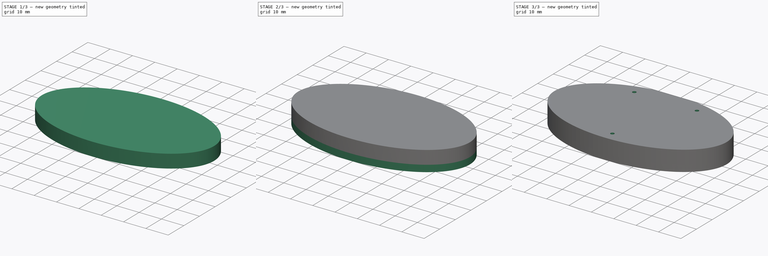
[diagram: build sequence overview — one tinted view per stage of 3, left to right]
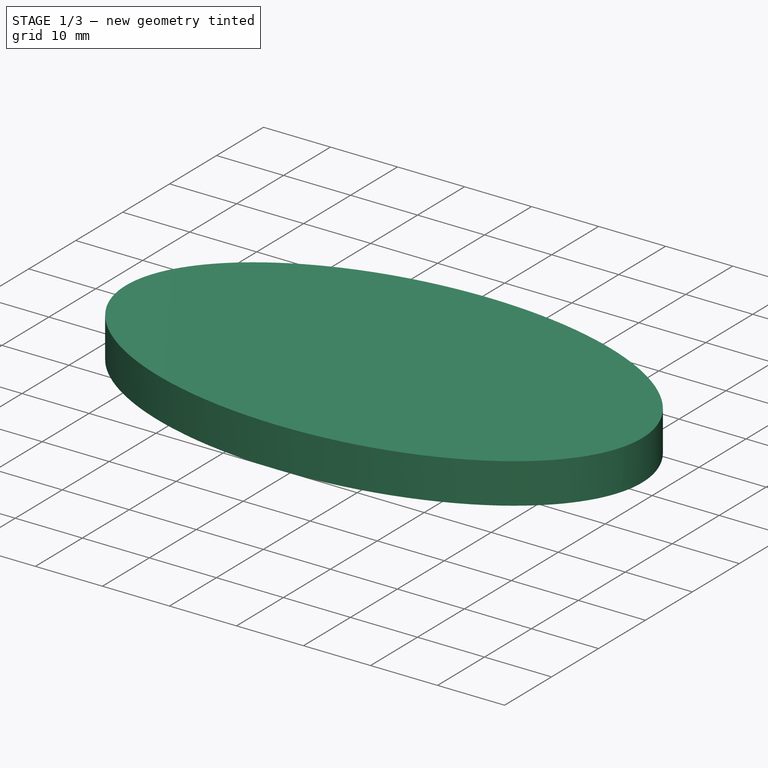
[diagram: stage 1 of 3 — iso view after this stage's code; geometry added in this stage tinted green]
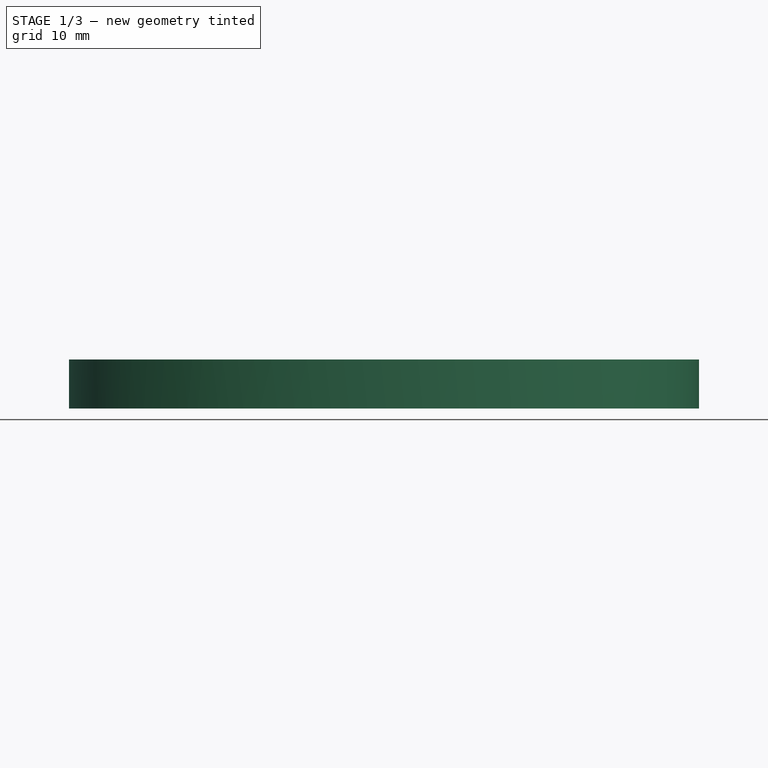
[diagram: stage 1 of 3 — front view after this stage's code; geometry added in this stage tinted green]
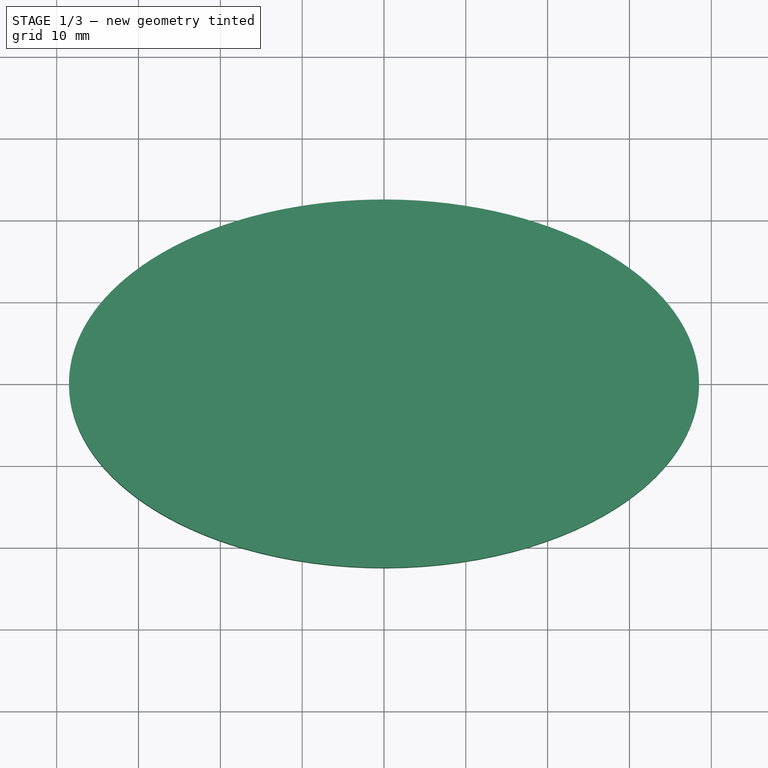
[diagram: stage 1 of 3 — top view after this stage's code; geometry added in this stage tinted green]
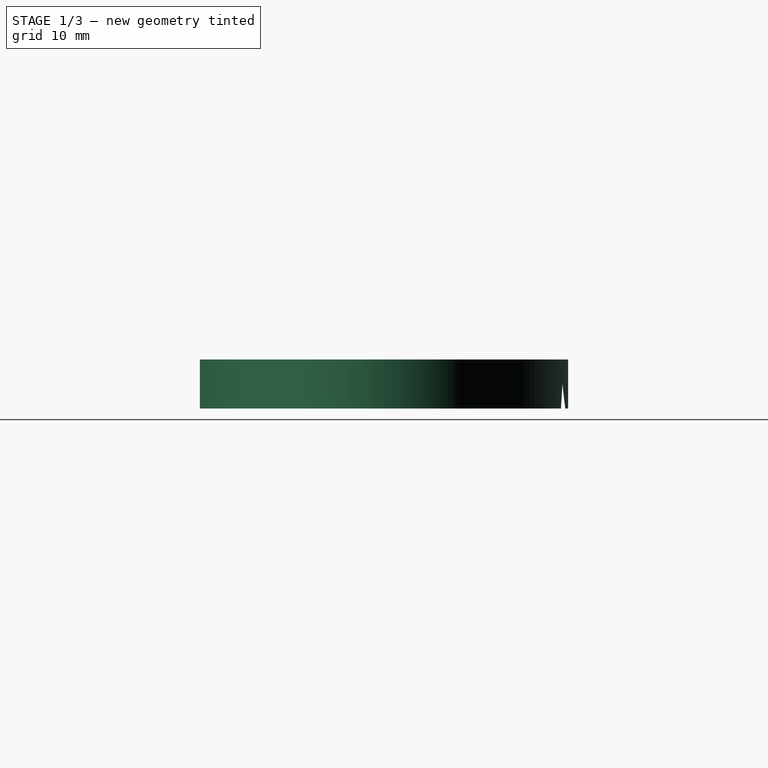
[diagram: stage 1 of 3 — right view after this stage's code; geometry added in this stage tinted green]
FCSTD DOCUMENT  (FreeCAD 0.17R13541 (Git))
Label: Medium-Dense-4-Pixil-Night-Light-ResiZing-66mm-Slot-77mm-Wide-M2-Screws-Bottom-Hexa-Vents
License: All rights reserved
LicenseURL: http://en.wikipedia.org/wiki/All_rights_reserved
objects: Sketcher::SketchObject×7, PartDesign::Pocket×4, PartDesign::Pad×2, PartDesign::Body×1, App::Part×1
note: 20 computed .brp shape members not serialized (recipe doc carries the construction recipe); baked Part::Feature solids carry a one-line shape summary decoded from their .brp

FEATURE [Sketcher::SketchObject] Sketch
  MapMode = 5
  Support = -> [XY_Plane001]
  sketch-geometry (6):
    g0: Ellipse CenterX=0 CenterY=0 CenterZ=0 NormalX=0 NormalY=0 NormalZ=1 MajorRadius=38.5 MinorRadius=22.5 AngleXU=0
    g1: LineSegment [constr] StartX=38.5 StartY=0 StartZ=0 EndX=-38.5 EndY=0 EndZ=0
    g2: LineSegment [constr] StartX=0 StartY=22.5 StartZ=0 EndX=0 EndY=-22.5 EndZ=0
    g3: GeomPoint X=31.241 Y=0 Z=0
    g4: GeomPoint X=-31.241 Y=0 Z=0
    g5: LineSegment StartX=-6.25 StartY=-22.2015 StartZ=0 EndX=6.25 EndY=-22.2015 EndZ=0
  constraints (9):
    c: InternalAlignment(g1-g4 -> g0) x4
    c: Coincident(g0,g-1)
    c: PointOnObject(g2,g-2)
    c: Distance(g2,g2) = 45
    c: Distance(g1,g1) = 77
    c: PointOnObject(g5,g0)
    c: PointOnObject(g5,g0)
    c: Horizontal(g5)
    c: Distance(g5,g5) = 12.5
FEATURE [PartDesign::Pad] Pad
  Length = 6
  Length2 = 100
  Profile = -> Sketch
  Type = 0
FEATURE [Sketcher::SketchObject] Sketch001
  ExternalGeometry = -> [Pad]
  MapMode = 5
  Placement = pos=(0,0,0) rot=(1,0,0;3.14159rad)
  Support = -> [Pad]
  sketch-geometry (9):
    g0: LineSegment StartX=9.55 StartY=-3.6968 StartZ=0 EndX=9.55 EndY=-21.7968 EndZ=0
    g1: LineSegment StartX=9.55 StartY=-21.7968 StartZ=0 EndX=-9.55 EndY=-21.7968 EndZ=0
    g2: LineSegment StartX=-9.55 StartY=-21.7968 StartZ=0 EndX=-9.55 EndY=-3.6968 EndZ=0
    g3: LineSegment StartX=-33 StartY=6.3032 StartZ=0 EndX=33 EndY=6.3032 EndZ=0
    g4: LineSegment StartX=33 StartY=6.3032 StartZ=0 EndX=33 EndY=-3.6968 EndZ=0
    g5: LineSegment StartX=-33 StartY=-3.6968 StartZ=0 EndX=-33 EndY=6.3032 EndZ=0
    g6: GeomPoint X=0 Y=6.3032 Z=0
    g7: LineSegment StartX=-33 StartY=-3.6968 StartZ=0 EndX=-9.55 EndY=-3.6968 EndZ=0
    g8: LineSegment StartX=9.55 StartY=-3.6968 StartZ=0 EndX=33 EndY=-3.6968 EndZ=0
  constraints (26):
    c: Coincident(g0,g1)
    c: Coincident(g1,g2)
    c: Horizontal(g1)
    c: Vertical(g0)
    c: Vertical(g2)
    c: PointOnObject(g1,g-3)
    c: PointOnObject(g0,g-3)
    c: Distance(g1) = 19.1
    c: Distance(g0) = 18.1
    c: Coincident(g3,g4)
    c: Coincident(g5,g3)
    c: Horizontal(g3)
    c: Vertical(g4)
    c: Vertical(g5)
    c: Distance(g4) = 10
    c: Distance(g3) = 66
    c: PointOnObject(g6,g3)
    c: Symmetric(g3,g3,g6)
    c: PointOnObject(g6,g-2)
    c: Coincident(g7,g5)
    c: Coincident(g7,g2)
    c: Horizontal(g7)
    c: Coincident(g8,g0)
    c: Coincident(g8,g4)
    c: Horizontal(g8)
    c: Distance(g2) = 18.1
FEATURE [PartDesign::Pocket] Pocket
  BaseFeature = -> Pad
  Length = 3
  Length2 = 100
  Profile = -> Sketch001
  Type = 0
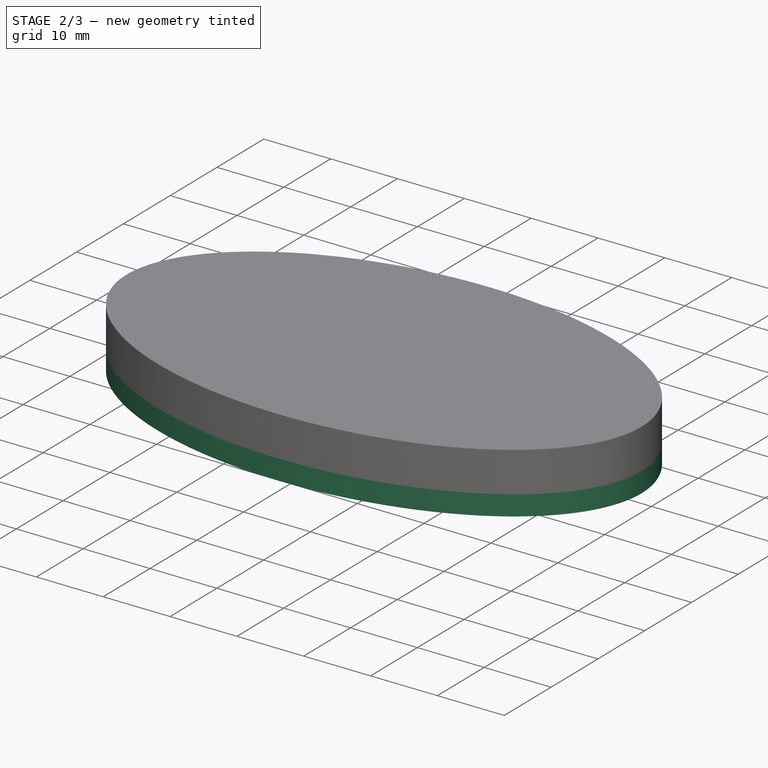
[diagram: stage 2 of 3 — iso view after this stage's code; geometry added in this stage tinted green]
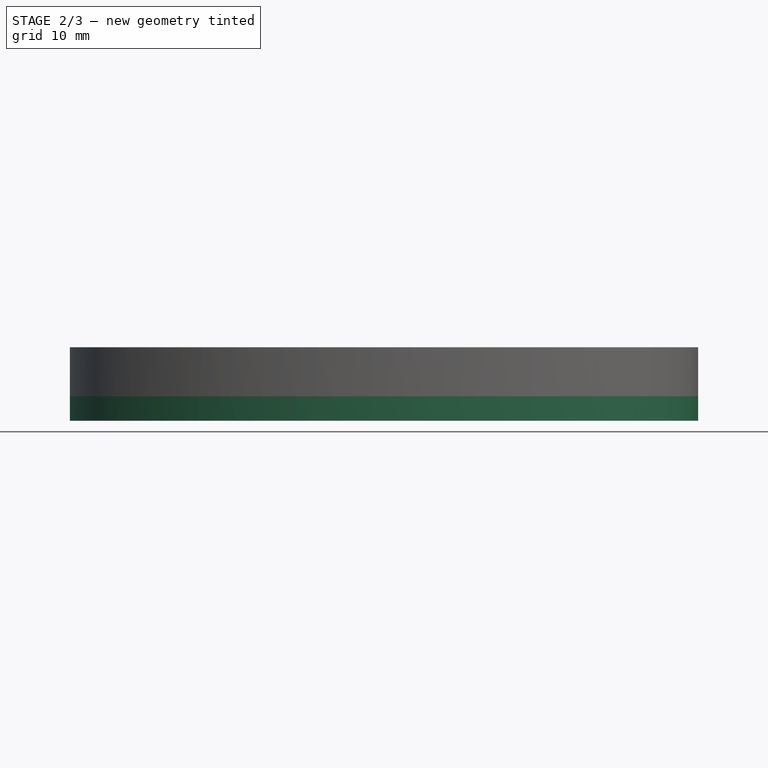
[diagram: stage 2 of 3 — front view after this stage's code; geometry added in this stage tinted green]
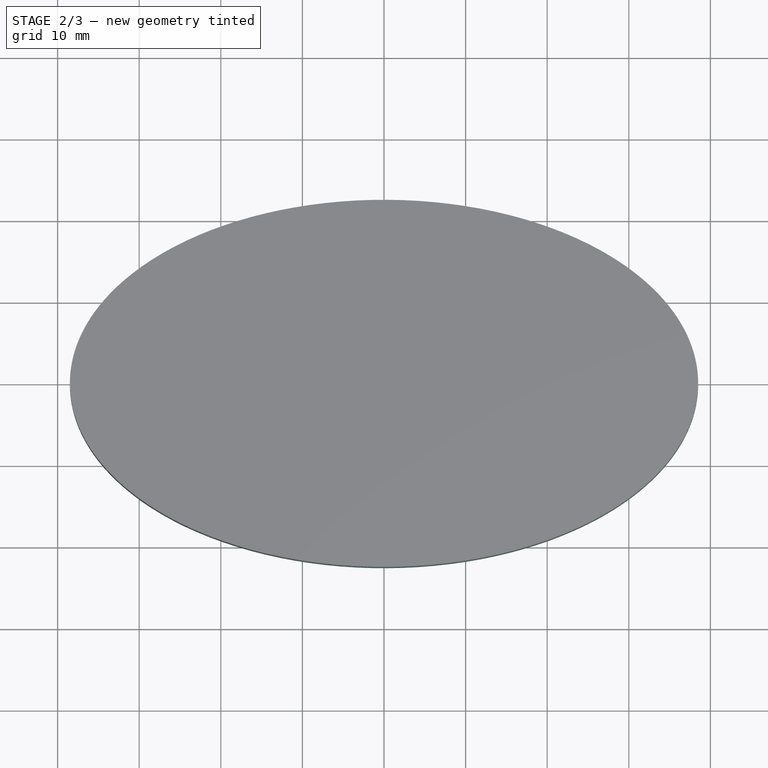
[diagram: stage 2 of 3 — top view after this stage's code; geometry added in this stage tinted green]
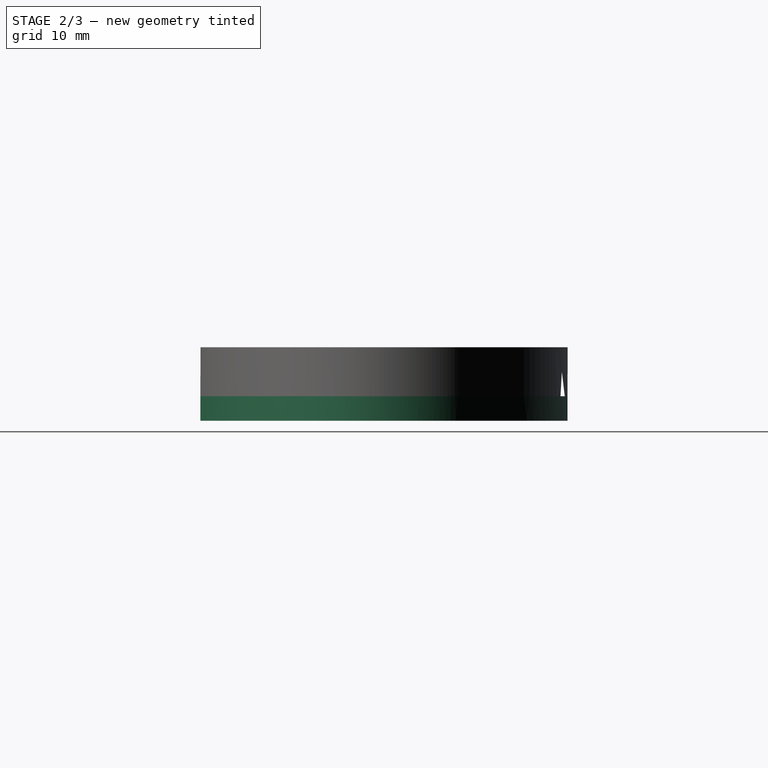
[diagram: stage 2 of 3 — right view after this stage's code; geometry added in this stage tinted green]
FEATURE [Sketcher::SketchObject] Sketch002
  ExternalGeometry = -> [Pocket]
  MapMode = 5
  Placement = pos=(0,0,0) rot=(1,0,0;3.14159rad)
  Support = -> [Pocket]
  sketch-geometry (5):
    g0: Ellipse CenterX=0 CenterY=0 CenterZ=0 NormalX=0 NormalY=0 NormalZ=1 MajorRadius=38.5 MinorRadius=22.5 AngleXU=0
    g1: LineSegment [constr] StartX=38.5 StartY=0 StartZ=0 EndX=-38.5 EndY=0 EndZ=0
    g2: LineSegment [constr] StartX=0 StartY=22.5 StartZ=0 EndX=0 EndY=-22.5 EndZ=0
    g3: GeomPoint X=31.241 Y=0 Z=0
    g4: GeomPoint X=-31.241 Y=0 Z=0
  constraints (4):
    c: InternalAlignment(g1-g4 -> g0) x4
    c: Coincident(g0,g-1)
    c: Equal(g0,g-3)
    c: PointOnObject(g2,g-2)
FEATURE [PartDesign::Pad] Pad001
  BaseFeature = -> Pocket
  Length = 3
  Length2 = 100
  Profile = -> Sketch002
  Type = 0
FEATURE [Sketcher::SketchObject] Sketch003
  ExternalGeometry = -> [Pad001]
  MapMode = 5
  Placement = pos=(0,0,-3) rot=(1,0,0;3.14159rad)
  Support = -> [Pad001]
  sketch-geometry (8):
    g0: LineSegment StartX=-33 StartY=2.6882 StartZ=0 EndX=33 EndY=2.6882 EndZ=0
    g1: LineSegment StartX=33 StartY=2.6882 StartZ=0 EndX=33 EndY=-0.0818015 EndZ=0
    g2: LineSegment StartX=33 StartY=-0.0818015 StartZ=0 EndX=-33 EndY=-0.0818015 EndZ=0
    g3: LineSegment StartX=-33 StartY=-0.0818015 StartZ=0 EndX=-33 EndY=2.6882 EndZ=0
    g4: GeomPoint X=0 Y=2.6882 Z=0
    g5: GeomPoint X=33 Y=1.3032 Z=0
    g6: GeomPoint X=33.5 Y=6.3032 Z=0
    g7: GeomPoint X=32.5 Y=-3.6968 Z=0
  constraints (19):
    c: Coincident(g0,g1)
    c: Coincident(g1,g2)
    c: Coincident(g2,g3)
    c: Coincident(g3,g0)
    c: Horizontal(g0)
    c: Horizontal(g2)
    c: Vertical(g1)
    c: Vertical(g3)
    c: Distance(g1) = 2.77
    c: Distance(g0) = 66
    c: PointOnObject(g4,g0)
    c: Symmetric(g0,g0,g4)
    c: PointOnObject(g4,g-2)
    c: PointOnObject(g5,g1)
    c: Symmetric(g0,g1,g5)
    c: PointOnObject(g6,g-3)
    c: PointOnObject(g7,g-4)
    c: Symmetric(g6,g7,g5)
    c: Distance(g7,g-4) = 0.5
FEATURE [PartDesign::Pocket] Pocket001
  BaseFeature = -> Pad001
  Length = 3
  Length2 = 100
  Profile = -> Sketch003
  Type = 0
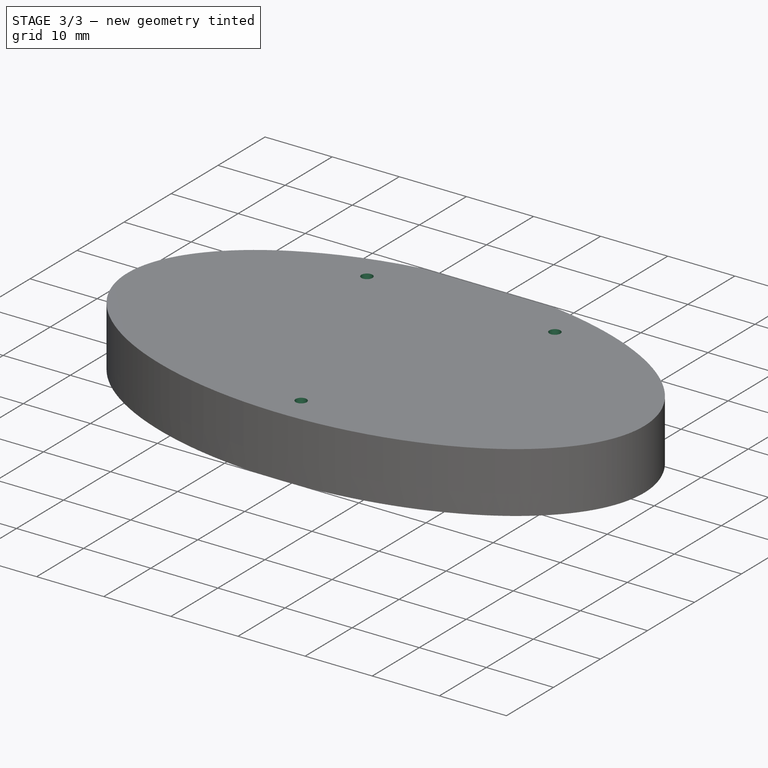
[diagram: stage 3 of 3 — iso view after this stage's code; geometry added in this stage tinted green]
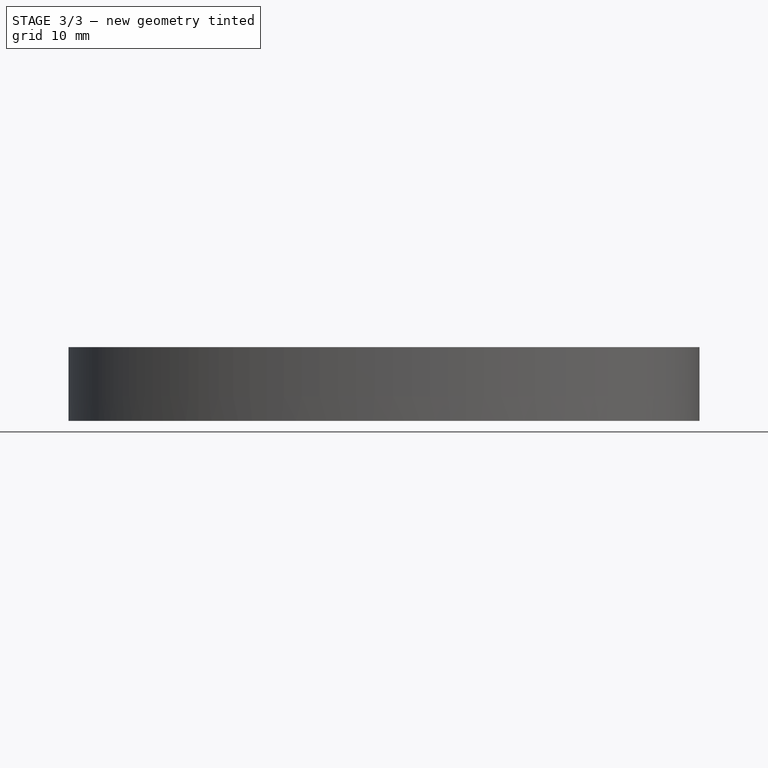
[diagram: stage 3 of 3 — front view after this stage's code; geometry added in this stage tinted green]
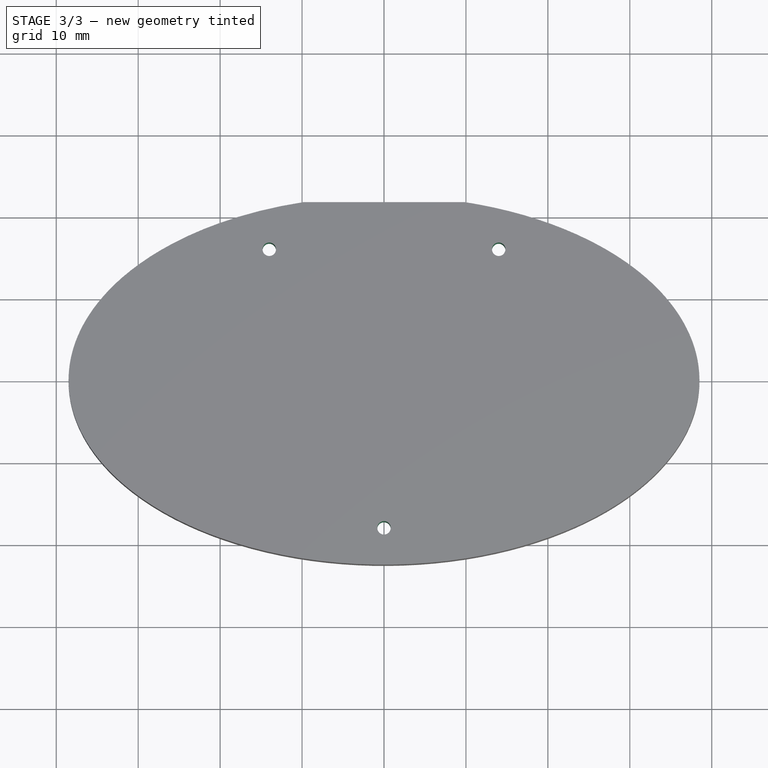
[diagram: stage 3 of 3 — top view after this stage's code; geometry added in this stage tinted green]
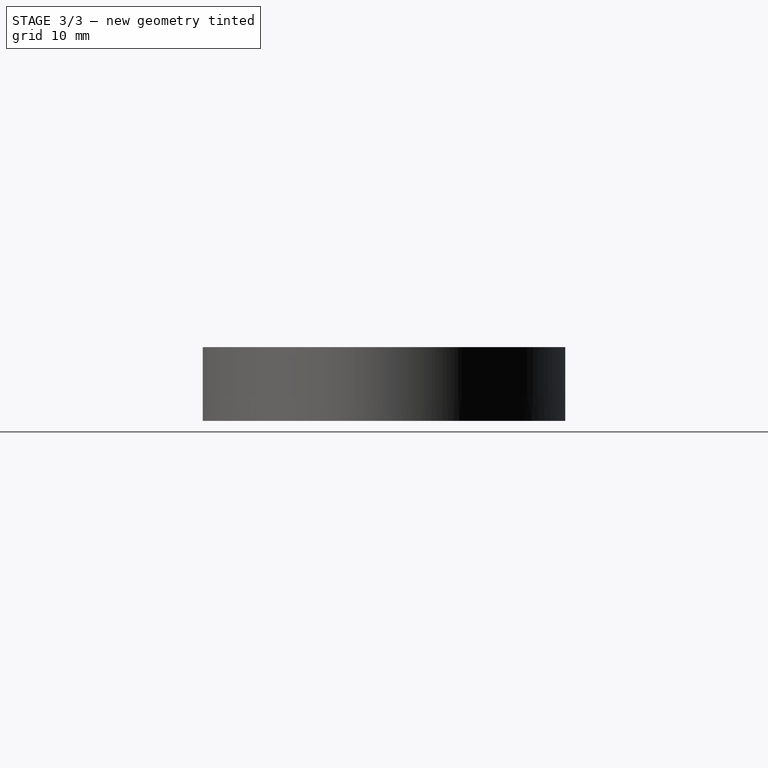
[diagram: stage 3 of 3 — right view after this stage's code; geometry added in this stage tinted green]
FEATURE [Sketcher::SketchObject] Sketch004
  ExternalGeometry = -> [Pocket001]
  MapMode = 5
  Placement = pos=(0,0,-3) rot=(1,0,0;3.14159rad)
  Support = -> [Pocket001]
  sketch-geometry (4):
    g0: LineSegment StartX=-9.8 StartY=-21.7589 StartZ=0 EndX=9.8 EndY=-21.7589 EndZ=0
    g1: LineSegment StartX=9.8 StartY=-21.7589 StartZ=0 EndX=9.8 EndY=-22.7589 EndZ=0
    g2: LineSegment StartX=9.8 StartY=-22.7589 StartZ=0 EndX=-9.8 EndY=-22.7589 EndZ=0
    g3: LineSegment StartX=-9.8 StartY=-22.7589 StartZ=0 EndX=-9.8 EndY=-21.7589 EndZ=0
  constraints (12):
    c: Coincident(g0,g1)
    c: Coincident(g1,g2)
    c: Coincident(g2,g3)
    c: Coincident(g3,g0)
    c: Horizontal(g0)
    c: Horizontal(g2)
    c: Vertical(g1)
    c: Vertical(g3)
    c: PointOnObject(g0,g-3)
    c: PointOnObject(g0,g-3)
    c: Distance(g0) = 19.6
    c: Distance(g1) = 1
FEATURE [PartDesign::Pocket] Pocket002
  BaseFeature = -> Pocket001
  Length = 5
  Length2 = 100
  Profile = -> Sketch004
  Type = 1
FEATURE [Sketcher::SketchObject] Sketch005
  MapMode = 5
  Placement = pos=(0,0,6) rot=(0,0,1;0rad)
  Support = -> [Pocket002]
  sketch-geometry (4):
    g0: Circle CenterX=-14 CenterY=16 CenterZ=0 NormalX=0 NormalY=0 NormalZ=1 AngleXU=0 Radius=0.82
    g1: Circle CenterX=14 CenterY=16 CenterZ=0 NormalX=0 NormalY=0 NormalZ=1 AngleXU=0 Radius=0.82
    g2: Circle CenterX=0 CenterY=-18 CenterZ=0 NormalX=0 NormalY=0 NormalZ=1 AngleXU=0 Radius=0.82
    g3: GeomPoint X=-14.7332 Y=16.3671 Z=0
  constraints (10):
    c: PointOnObject(g2,g-2)
    c: PointOnObject(g3,g0)
    c: Distance(g3,g0) = 0.82
    c: Equal(g0,g2)
    c: Equal(g0,g1)
    c: Distance(g0,g-2) = 14
    c: Distance(g0,g-1) = 16
    c: Distance(g1,g-2) = 14
    c: Distance(g1,g-1) = 16
    c: Distance(g-1,g2) = 18
FEATURE [PartDesign::Pocket] Pocket003
  BaseFeature = -> Pocket002
  Length = 5
  Length2 = 100
  Profile = -> Sketch005
  Type = 1
FEATURE [Sketcher::SketchObject] Sketch006
  ExternalGeometry = -> [Pocket003]
  MapMode = 5
  Placement = pos=(0,0,-3) rot=(1,0,0;3.14159rad)
  Support = -> [Pocket003]
  sketch-geometry (14):
    g0: LineSegment StartX=-22.5 StartY=-7.41193 StartZ=0 EndX=-22.5 EndY=-4.52518 EndZ=0
    g1: LineSegment StartX=-22.5 StartY=-4.52518 StartZ=0 EndX=-25 EndY=-3.0818 EndZ=0
    g2: LineSegment StartX=-25 StartY=-3.0818 StartZ=0 EndX=-27.5 EndY=-4.52518 EndZ=0
    g3: LineSegment StartX=-27.5 StartY=-4.52518 StartZ=0 EndX=-27.5 EndY=-7.41193 EndZ=0
    g4: LineSegment StartX=-27.5 StartY=-7.41193 StartZ=0 EndX=-25 EndY=-8.8553 EndZ=0
    g5: LineSegment StartX=-25 StartY=-8.8553 StartZ=0 EndX=-22.5 EndY=-7.41193 EndZ=0
    g6: Circle [constr] CenterX=-25 CenterY=-5.96855 CenterZ=0 NormalX=0 NormalY=0 NormalZ=1 AngleXU=0 Radius=2.88675
    g7: LineSegment StartX=-22.5 StartY=7.13157 StartZ=0 EndX=-22.5 EndY=10.0183 EndZ=0
    g8: LineSegment StartX=-22.5 StartY=10.0183 StartZ=0 EndX=-25 EndY=11.4617 EndZ=0
    g9: LineSegment StartX=-25 StartY=11.4617 StartZ=0 EndX=-27.5 EndY=10.0183 EndZ=0
    g10: LineSegment StartX=-27.5 StartY=10.0183 StartZ=0 EndX=-27.5 EndY=7.13157 EndZ=0
    g11: LineSegment StartX=-27.5 StartY=7.13157 StartZ=0 EndX=-25 EndY=5.6882 EndZ=0
    g12: LineSegment StartX=-25 StartY=5.6882 StartZ=0 EndX=-22.5 EndY=7.13157 EndZ=0
    g13: Circle [constr] CenterX=-25 CenterY=8.57495 CenterZ=0 NormalX=0 NormalY=0 NormalZ=1 AngleXU=0 Radius=2.88675
  constraints (34):
    c: Coincident(g0,g1)
    c: Coincident(g1,g2)
    c: Coincident(g2,g3)
    c: Coincident(g3,g4)
    c: Coincident(g4,g5)
    c: Coincident(g5,g0)
    c: Equal(g0, g1-g5) x5
    c: PointOnObject(g0,g6)
    c: PointOnObject(g1,g6)
    c: PointOnObject(g2,g6)
    c: PointOnObject(g3,g6)
    c: PointOnObject(g4,g6)
    c: PointOnObject(g5,g6)
    c: Distance(g1,g-3) = 3
    c: Distance(g2,g0) = 5
    c: Coincident(g7,g8)
    c: Coincident(g8,g9)
    c: Coincident(g9,g10)
    c: Coincident(g10,g11)
    c: Coincident(g11,g12)
    c: Coincident(g12,g7)
    c: Equal(g7, g8-g12) x5
    c: PointOnObject(g7,g13)
    c: PointOnObject(g8,g13)
    c: PointOnObject(g9,g13)
    c: PointOnObject(g10,g13)
    c: PointOnObject(g11,g13)
    c: PointOnObject(g12,g13)
    c: Distance(g9,g7) = 5
    c: Distance(g11,g-4) = 3
    c: Distance(g8,g-2) = 25
    c: Distance(g11,g-2) = 25
    c: Distance(g1,g-2) = 25
    c: Distance(g4,g-2) = 25
FEATURE [PartDesign::Body] Body
  Group = -> [Sketch,Pad,Sketch001,Pocket,Sketch002,Pad001,Sketch003,Pocket001,Sketch004,Pocket002,Sketch005,Pocket003,Sketch006]
  Origin = -> Origin001
  Tip = -> Pocket003
FEATURE [App::Part] Part
  Group = -> [Body]
  License = CC BY 3.0
  LicenseURL = http://creativecommons.org/licenses/by/3.0/
  Origin = -> Origin
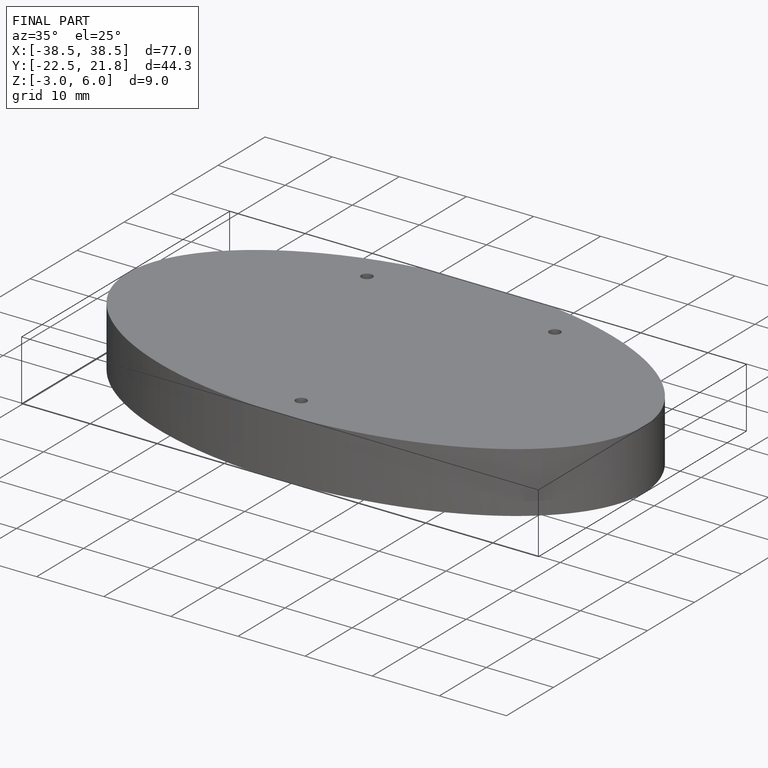
[diagram: finished part — iso view with bounding-box wireframe]
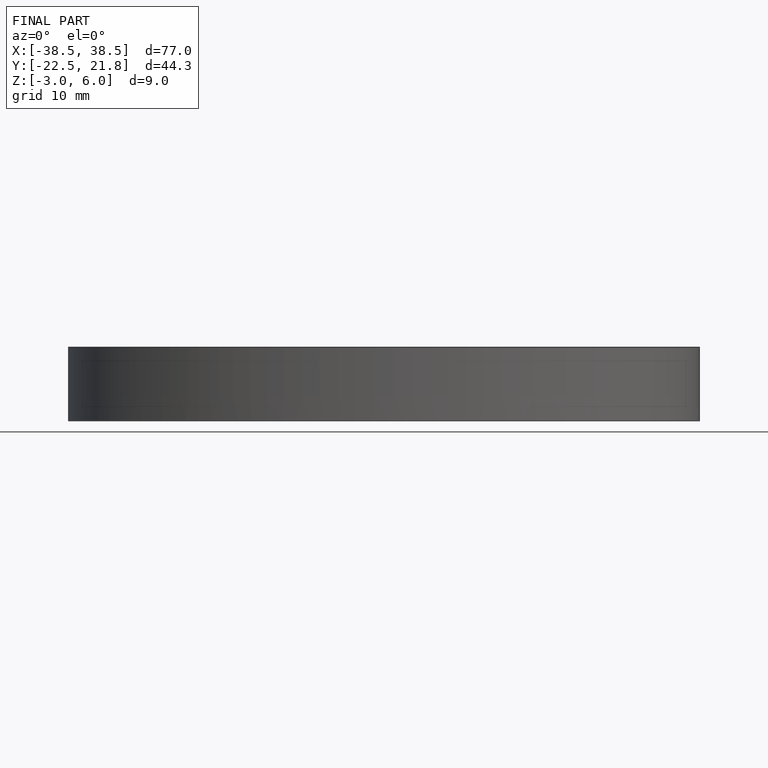
[diagram: finished part — front view with bounding-box wireframe]
